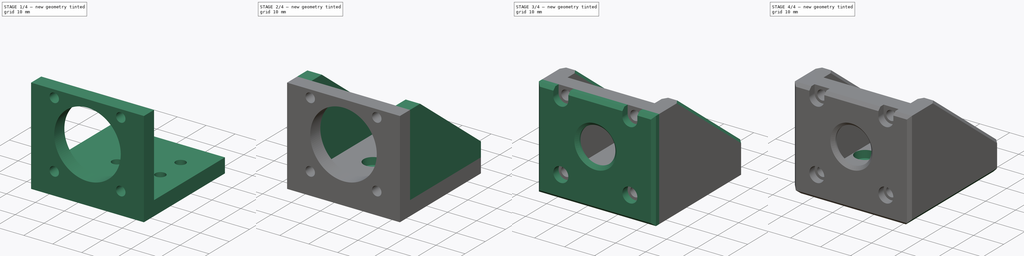
[diagram: build sequence overview — one tinted view per stage of 4, left to right]
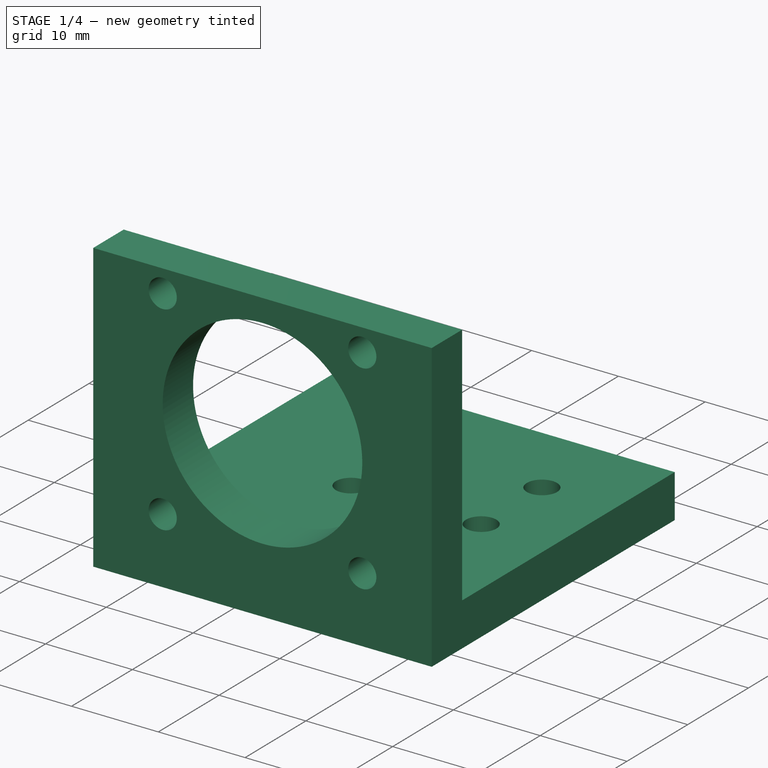
[diagram: stage 1 of 4 — iso view after this stage's code; geometry added in this stage tinted green]
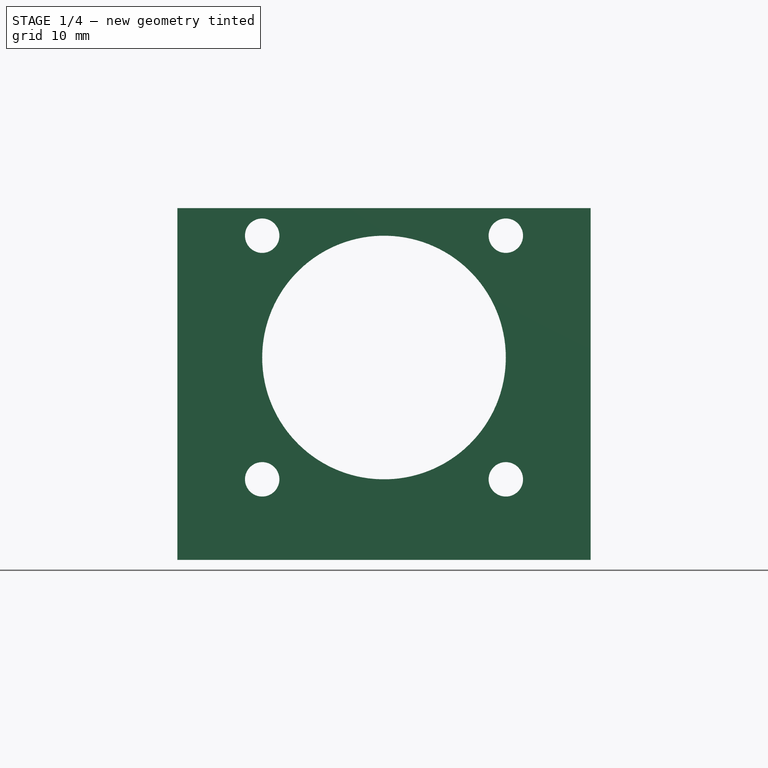
[diagram: stage 1 of 4 — front view after this stage's code; geometry added in this stage tinted green]
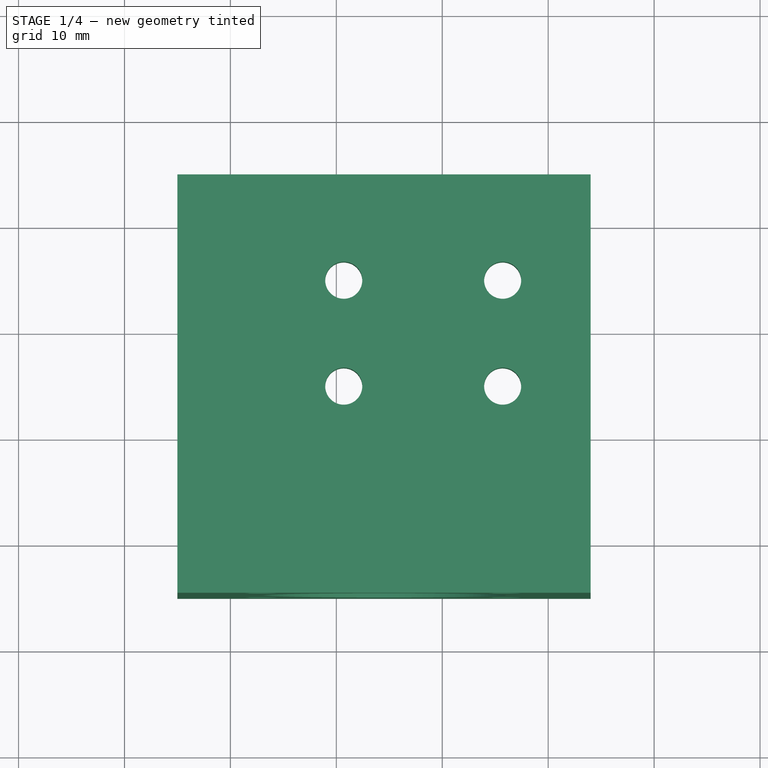
[diagram: stage 1 of 4 — top view after this stage's code; geometry added in this stage tinted green]
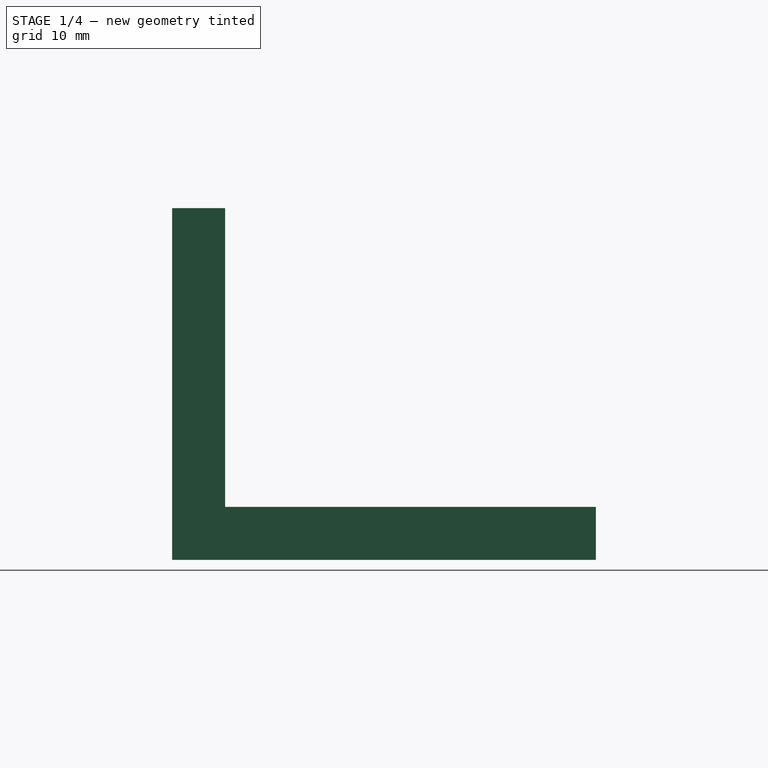
[diagram: stage 1 of 4 — right view after this stage's code; geometry added in this stage tinted green]
FCSTD DOCUMENT  (FreeCAD 0.20R29410 (Git))
Label: z-gantry
License: All rights reserved
LicenseURL: http://en.wikipedia.org/wiki/All_rights_reserved
objects: Sketcher::SketchObject×8, PartDesign::Plane×7, PartDesign::Pad×5, PartDesign::Chamfer×4, PartDesign::Pocket×3, PartDesign::Mirrored×1, PartDesign::Body×1
note: 41 computed .brp shape members not serialized (recipe doc carries the construction recipe); baked Part::Feature solids carry a one-line shape summary decoded from their .brp

FEATURE [Sketcher::SketchObject] Sketch  label="Back"
  FullyConstrained = false
  MapMode = 5
  Support = -> [XY_Plane]
  sketch-geometry (19):
    g0: LineSegment StartX=-3.79848e-06 StartY=48 StartZ=0 EndX=-3.79848e-06 EndY=0 EndZ=0
    g1: LineSegment StartX=10.7 StartY=25 StartZ=0 EndX=25.7 EndY=25 EndZ=0
    g2: LineSegment StartX=25.7 StartY=25 StartZ=0 EndX=25.7 EndY=15 EndZ=0
    g3: LineSegment StartX=25.7 StartY=15 StartZ=0 EndX=10.7 EndY=15 EndZ=0
    g4: LineSegment StartX=10.7 StartY=15 StartZ=0 EndX=10.7 EndY=25 EndZ=0
    g5: LineSegment StartX=-5 StartY=35 StartZ=0 EndX=-5 EndY=-5 EndZ=0
    g6: LineSegment StartX=8.2 StartY=22 StartZ=0 EndX=28.2 EndY=22 EndZ=0
    g7: LineSegment StartX=28.2 StartY=22 StartZ=0 EndX=28.2 EndY=18 EndZ=0
    g8: LineSegment StartX=28.2 StartY=18 StartZ=0 EndX=8.2 EndY=18 EndZ=0
    g9: LineSegment StartX=8.2 StartY=18 StartZ=0 EndX=8.2 EndY=22 EndZ=0
    g10: LineSegment StartX=18.2 StartY=22 StartZ=0 EndX=18.2 EndY=18 EndZ=0
    g11: LineSegment StartX=8.2 StartY=20 StartZ=0 EndX=28.2 EndY=20 EndZ=0
    g12: Circle CenterX=10.7 CenterY=25 CenterZ=0 NormalX=0 NormalY=0 NormalZ=1 AngleXU=0 Radius=1.75
    g13: Circle CenterX=25.7 CenterY=25 CenterZ=0 NormalX=0 NormalY=0 NormalZ=1 AngleXU=0 Radius=1.75
    g14: Circle CenterX=25.7 CenterY=15 CenterZ=0 NormalX=0 NormalY=0 NormalZ=1 AngleXU=0 Radius=1.75
    g15: Circle CenterX=10.7 CenterY=15 CenterZ=0 NormalX=0 NormalY=0 NormalZ=1 AngleXU=0 Radius=1.75
    g16: LineSegment StartX=-5 StartY=35 StartZ=0 EndX=34 EndY=35 EndZ=0
    g17: LineSegment StartX=-5 StartY=-5 StartZ=0 EndX=34 EndY=-5 EndZ=0
    g18: LineSegment StartX=34 StartY=35 StartZ=0 EndX=34 EndY=-5 EndZ=0
  constraints (51):
    c: Vertical(g0)
    c: Coincident(g1,g2)
    c: Coincident(g2,g3)
    c: Coincident(g3,g4)
    c: Coincident(g4,g1)
    c: Horizontal(g1)
    c: Horizontal(g3)
    c: Vertical(g2)
    c: Vertical(g4)
    c: Vertical(g5)
    c: DistanceX(g1,g1) = 15
    c: DistanceY(g2,g2) = 10
    c: Coincident(g6,g7)
    c: Coincident(g7,g8)
    c: Coincident(g8,g9)
    c: Coincident(g9,g6)
    c: Horizontal(g8)
    c: Vertical(g7)
    c: DistanceX(g6,g6) = 20
    c: DistanceY(g7,g7) = 30
    c: DistanceX(g5,g-1) = 5
    c: DistanceY(g5,g-1) = 5
    c: PointOnObject(g10,g6)
    c: PointOnObject(g10,g8)
    c: PointOnObject(g11,g9)
    c: PointOnObject(g11,g7)
    c: Symmetric(g6,g6,g10)
    c: Symmetric(g6,g8,g11)
    c: Symmetric(g1,g1,g10)
    c: Symmetric(g1,g2,g11)
    c: Coincident(g12,g1)
    c: Coincident(g13,g1)
    c: Coincident(g14,g2)
    c: Coincident(g15,g3)
    c: Diameter(g13) = 3.5
    c: Diameter(g12) = 3.5
    c: Diameter(g15) = 3.5
    c: Diameter(g14) = 3.5
    c: Distance(g7,g-2) = 28.2
    c: Distance(g5,g-1) = 35
    c: DistanceY(g-1,g8) = 18
    c: Coincident(g16,g5)
    c: Horizontal(g16)
    c: DistanceX(g16,g16) = 39
    c: Coincident(g17,g5)
    c: Horizontal(g17)
    c: Equal(g17,g16)
    c: Coincident(g18,g17)
    c: Coincident(g18,g16)
    c: DistanceY(g1,g16) = 23
    c: DistanceY(g17,g2) = 20
FEATURE [PartDesign::Pad] Pad  label="pad_back"
  AllowMultiFace = false
  Direction = (1,1,1)
  Length = 5
  Length2 = 100
  Profile = -> Sketch
  Refine = true
  Type = 0
FEATURE [PartDesign::Plane] DatumPlane
  Length = 70.8996
  MapMode = 5
  Placement = pos=(0,0,5) rot=(0,0,1;0rad)
  ResizeMode = 0
  Support = -> [Pad]
  Width = 71.8996
FEATURE [Sketcher::SketchObject] Sketch001  label="steppermount"
  FullyConstrained = true
  MapMode = 5
  Placement = pos=(0,0,5) rot=(0,0,1;0rad)
  Support = -> [DatumPlane]
  sketch-geometry (4):
    g0: LineSegment StartX=34 StartY=0 StartZ=0 EndX=34 EndY=-5 EndZ=0
    g1: LineSegment StartX=34 StartY=-5 StartZ=0 EndX=-5 EndY=-5 EndZ=0
    g2: LineSegment StartX=34 StartY=0 StartZ=0 EndX=-5 EndY=0 EndZ=0
    g3: LineSegment StartX=-5 StartY=-5 StartZ=0 EndX=-5 EndY=0 EndZ=0
  constraints (12):
    c: PointOnObject(g0,g-1)
    c: Vertical(g0)
    c: Coincident(g0,g1)
    c: Horizontal(g1)
    c: DistanceY(g0,g0) = 5
    c: DistanceX(g1,g1) = 39
    c: Coincident(g2,g0)
    c: Horizontal(g2)
    c: Coincident(g3,g1)
    c: Coincident(g3,g2)
    c: Vertical(g3)
    c: DistanceX(g2,g-1) = 5
FEATURE [PartDesign::Pad] Pad001
  AllowMultiFace = false
  BaseFeature = -> Pad
  Direction = (1,1,1)
  Length = 28.2
  Length2 = 100
  Profile = -> Sketch001
  Refine = true
  Type = 0
FEATURE [PartDesign::Plane] DatumPlane001
  Length = 70.8996
  MapMode = 5
  Placement = pos=(0,0,10) rot=(0,0,1;0rad)
  ResizeMode = 0
  Width = 71.8996
FEATURE [Sketcher::SketchObject] Sketch004
  ExternalGeometry = -> [Pad001]
  FullyConstrained = true
  MapMode = 5
  Placement = pos=(0,0,0) rot=(1,0,0;1.5708rad)
  Support = -> [XZ_Plane]
  sketch-geometry (15):
    g0: LineSegment StartX=0 StartY=5 StartZ=0 EndX=28.2 EndY=5 EndZ=0
    g1: LineSegment StartX=28.2 StartY=5 StartZ=0 EndX=28.2 EndY=33.2 EndZ=0
    g2: LineSegment StartX=28.2 StartY=33.2 StartZ=0 EndX=0 EndY=33.2 EndZ=0
    g3: LineSegment StartX=0 StartY=33.2 StartZ=0 EndX=0 EndY=5 EndZ=0
    g4: Circle CenterX=14.5 CenterY=19.1 CenterZ=0 NormalX=0 NormalY=0 NormalZ=1 AngleXU=0 Radius=11.5
    g5: Circle CenterX=3 CenterY=30.6 CenterZ=0 NormalX=0 NormalY=0 NormalZ=1 AngleXU=0 Radius=1.625
    g6: Circle CenterX=3 CenterY=7.6 CenterZ=0 NormalX=0 NormalY=0 NormalZ=1 AngleXU=0 Radius=1.625
    g7: Circle CenterX=26 CenterY=7.6 CenterZ=0 NormalX=0 NormalY=0 NormalZ=1 AngleXU=0 Radius=1.625
    g8: Circle CenterX=26 CenterY=30.6 CenterZ=0 NormalX=0 NormalY=0 NormalZ=1 AngleXU=0 Radius=1.625
    g9: LineSegment StartX=3 StartY=30.6 StartZ=0 EndX=3 EndY=7.6 EndZ=0
    g10: LineSegment StartX=3 StartY=7.6 StartZ=0 EndX=26 EndY=7.6 EndZ=0
    g11: LineSegment StartX=26 StartY=7.6 StartZ=0 EndX=26 EndY=30.6 EndZ=0
    g12: LineSegment StartX=26 StartY=30.6 StartZ=0 EndX=3 EndY=30.6 EndZ=0
    g13: LineSegment StartX=14.5 StartY=33.2 StartZ=0 EndX=14.5 EndY=5 EndZ=0
    g14: LineSegment StartX=0 StartY=19.1 StartZ=0 EndX=28.2 EndY=19.1 EndZ=0
  constraints (39):
    c: Coincident(g0,g1)
    c: Coincident(g1,g2)
    c: Coincident(g2,g3)
    c: Coincident(g3,g0)
    c: Horizontal(g0)
    c: Horizontal(g2)
    c: Vertical(g1)
    c: Vertical(g3)
    c: PointOnObject(g0,g-2)
    c: DistanceX(g2,g2) = 28.2
    c: DistanceY(g1,g1) = 28.2
    c: DistanceY(g-1,g0) = 5
    c: Coincident(g9,g5)
    c: Coincident(g9,g6)
    c: Coincident(g9,g10)
    c: Coincident(g10,g7)
    c: Coincident(g10,g11)
    c: Coincident(g11,g8)
    c: Vertical(g11)
    c: Coincident(g11,g12)
    c: Coincident(g12,g9)
    c: Horizontal(g10)
    c: DistanceX(g12,g12) = 23
    c: DistanceY(g11,g11) = 23
    c: Diameter(g4) = 23
    c: Diameter(g8) = 3.25
    c: Diameter(g5) = 3.25
    c: Diameter(g6) = 3.25
    c: Diameter(g7) = 3.25
    c: PointOnObject(g13,g0)
    c: PointOnObject(g14,g3)
    c: PointOnObject(g14,g1)
    c: Symmetric(g2,g0,g14)
    c: Symmetric(g5,g8,g13)
    c: Symmetric(g5,g6,g14)
    c: PointOnObject(g4,g14)
    c: PointOnObject(g4,g13)
    c: Vertical(g13)
    c: Symmetric(g-3,g-4,g13)
FEATURE [PartDesign::Pocket] Pocket001  label="NEMA 11 Mounting Bolt Hole Pattern"
  AllowMultiFace = false
  BaseFeature = -> Pad001
  Direction = (1,1,1)
  Length = 6
  Length2 = 100
  Profile = -> Sketch004
  Refine = true
  Reversed = true
  Type = 1
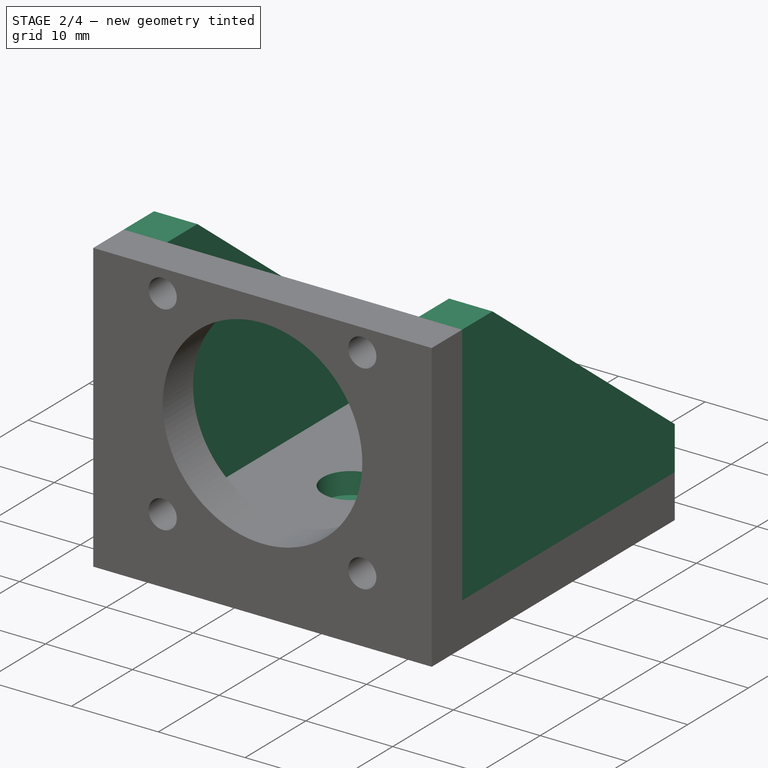
[diagram: stage 2 of 4 — iso view after this stage's code; geometry added in this stage tinted green]
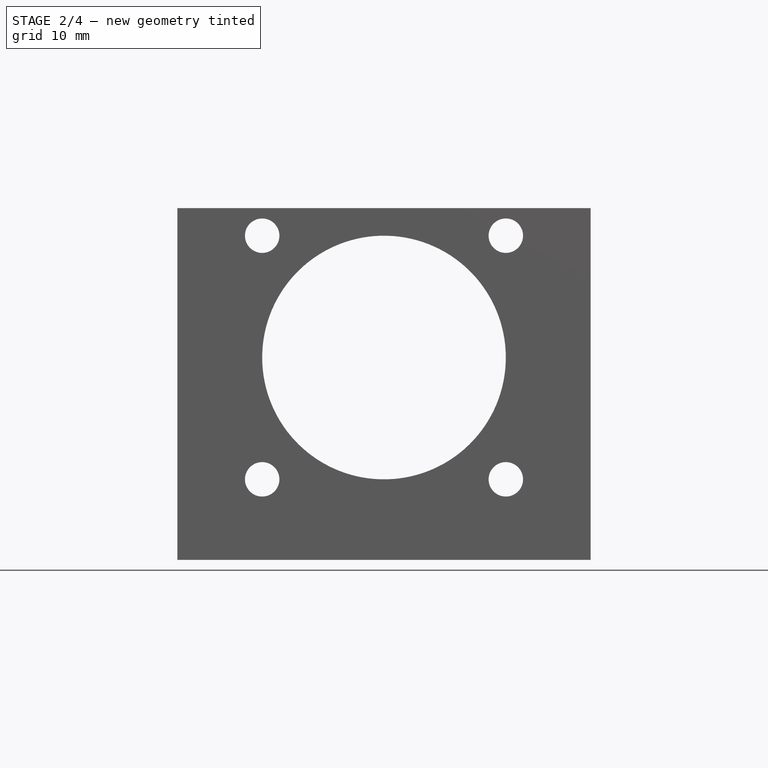
[diagram: stage 2 of 4 — front view after this stage's code; geometry added in this stage tinted green]
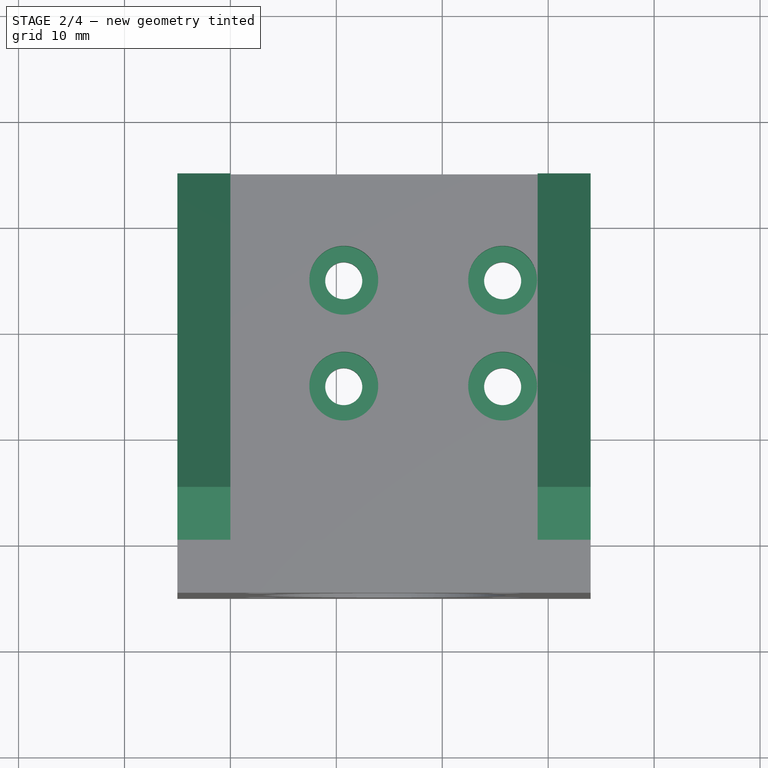
[diagram: stage 2 of 4 — top view after this stage's code; geometry added in this stage tinted green]
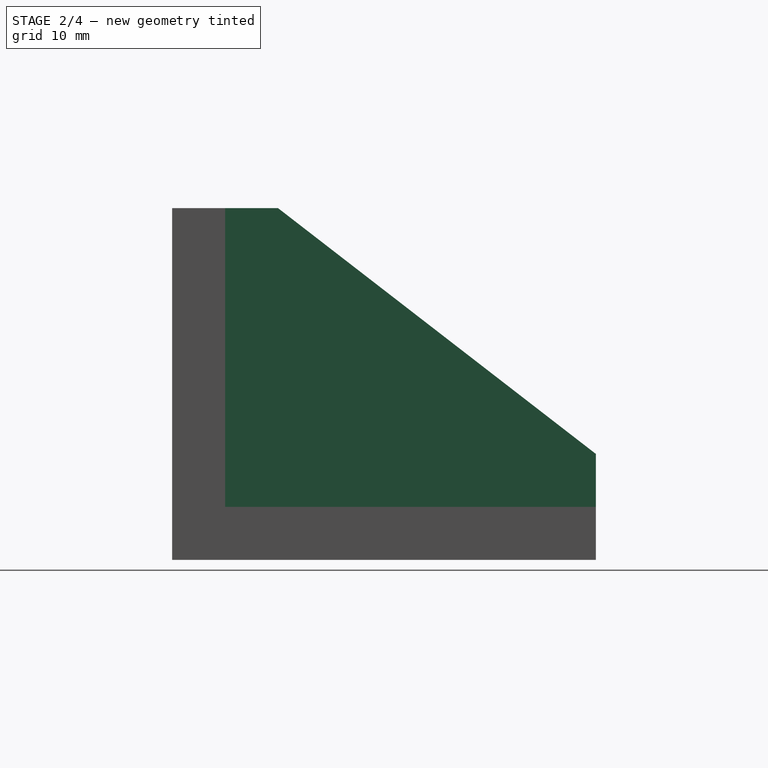
[diagram: stage 2 of 4 — right view after this stage's code; geometry added in this stage tinted green]
FEATURE [Sketcher::SketchObject] Sketch005  label="Counterbore"
  FullyConstrained = true
  MapMode = 5
  Placement = pos=(0,0,5) rot=(0,0,1;0rad)
  Support = -> [DatumPlane]
  sketch-geometry (8):
    g0: Circle CenterX=10.7 CenterY=25 CenterZ=0 NormalX=0 NormalY=0 NormalZ=1 AngleXU=0 Radius=3.25
    g1: Circle CenterX=25.7 CenterY=25 CenterZ=0 NormalX=0 NormalY=0 NormalZ=1 AngleXU=0 Radius=3.25
    g2: Circle CenterX=10.7 CenterY=15 CenterZ=0 NormalX=0 NormalY=0 NormalZ=1 AngleXU=0 Radius=3.25
    g3: Circle CenterX=25.7 CenterY=15 CenterZ=0 NormalX=0 NormalY=0 NormalZ=1 AngleXU=0 Radius=3.25
    g4: LineSegment StartX=10.7 StartY=25 StartZ=0 EndX=25.7 EndY=25 EndZ=0
    g5: LineSegment StartX=25.7 StartY=25 StartZ=0 EndX=25.7 EndY=15 EndZ=0
    g6: LineSegment StartX=25.7 StartY=15 StartZ=0 EndX=10.7 EndY=15 EndZ=0
    g7: LineSegment StartX=10.7 StartY=15 StartZ=0 EndX=10.7 EndY=25 EndZ=0
  constraints (20):
    c: Equal(g0,g1)
    c: DistanceX(g0,g1) = 15
    c: Horizontal(g0,g1)
    c: DistanceX(g-1,g0) = 10.7
    c: DistanceY(g-1,g0) = 25
    c: Diameter(g1) = 6.5
    c: Diameter(g3) = 6.5
    c: Diameter(g2) = 6.5
    c: Coincident(g4,g5)
    c: Coincident(g5,g6)
    c: Coincident(g6,g7)
    c: Coincident(g7,g4)
    c: Horizontal(g6)
    c: Vertical(g5)
    c: Vertical(g7)
    c: Coincident(g4,g0)
    c: Coincident(g4,g1)
    c: Coincident(g6,g2)
    c: Coincident(g5,g3)
    c: DistanceY(g7,g7) = 10
FEATURE [PartDesign::Pocket] Pocket002  label="pkt_counterbore"
  AllowMultiFace = false
  BaseFeature = -> Pocket001
  Direction = (1,1,1)
  Length = 2.5
  Length2 = 2
  Profile = -> Sketch005
  Refine = true
  Type = 0
FEATURE [PartDesign::Plane] DatumPlane002
  Length = 71.8186
  MapMode = 5
  Placement = pos=(-5,0,0) rot=(0.57735,-0.57735,-0.57735;2.0944rad)
  ResizeMode = 0
  Support = -> [Pocket002]
  Width = 70.0186
FEATURE [Sketcher::SketchObject] Sketch006  label="SideWall"
  FullyConstrained = true
  MapMode = 5
  Placement = pos=(-5,0,0) rot=(0.57735,-0.57735,-0.57735;2.0944rad)
  Support = -> [DatumPlane002]
  sketch-geometry (5):
    g0: LineSegment StartX=5 StartY=33.2 StartZ=0 EndX=-5 EndY=33.2 EndZ=0
    g1: LineSegment StartX=-5 StartY=33.2 StartZ=0 EndX=-35 EndY=10 EndZ=0
    g2: LineSegment StartX=-35 StartY=10 StartZ=0 EndX=-35 EndY=0 EndZ=0
    g3: LineSegment StartX=-35 StartY=0 StartZ=0 EndX=5 EndY=0 EndZ=0
    g4: LineSegment StartX=5 StartY=33.2 StartZ=0 EndX=5 EndY=0 EndZ=0
  constraints (15):
    c: PointOnObject(g3,g-1)
    c: Horizontal(g0)
    c: Coincident(g1,g0)
    c: Coincident(g2,g1)
    c: PointOnObject(g2,g-1)
    c: Vertical(g2)
    c: Coincident(g3,g2)
    c: DistanceX(g3,g3) = 40
    c: DistanceY(g2,g2) = 10
    c: DistanceY(g-1,g0) = 33.2
    c: DistanceX(g-1,g3) = 5
    c: DistanceX(g0,g0) = 10
    c: Coincident(g4,g0)
    c: Coincident(g4,g3)
    c: Vertical(g4)
FEATURE [PartDesign::Pad] Pad002  label="pad_sidewall"
  BaseFeature = -> Pocket002
  Direction = (1,1,1)
  Length = 5
  Length2 = 100
  Profile = -> Sketch006
  Reversed = true
  Type = 0
FEATURE [PartDesign::Plane] DatumPlane004
  Length = 60
  MapMode = 5
  Placement = pos=(34,0,0) rot=(0.57735,0.57735,0.57735;2.0944rad)
  ResizeMode = 0
  Width = 60
FEATURE [Sketcher::SketchObject] Sketch007  label="Sidewall2"
  FullyConstrained = true
  MapMode = 5
  Placement = pos=(34,0,0) rot=(0.57735,0.57735,0.57735;2.0944rad)
  Support = -> [DatumPlane004]
  sketch-geometry (5):
    g0: LineSegment StartX=-5 StartY=0 StartZ=0 EndX=35 EndY=0 EndZ=0
    g1: LineSegment StartX=35 StartY=0 StartZ=0 EndX=35 EndY=10 EndZ=0
    g2: LineSegment StartX=35 StartY=10 StartZ=0 EndX=5 EndY=33.2 EndZ=0
    g3: LineSegment StartX=5 StartY=33.2 StartZ=0 EndX=-5 EndY=33.2 EndZ=0
    g4: LineSegment StartX=-5 StartY=33.2 StartZ=0 EndX=-5 EndY=0 EndZ=0
  constraints (15):
    c: PointOnObject(g0,g-1)
    c: PointOnObject(g0,g-1)
    c: Coincident(g0,g1)
    c: Vertical(g1)
    c: Coincident(g1,g2)
    c: Coincident(g2,g3)
    c: Horizontal(g3)
    c: Coincident(g3,g4)
    c: Coincident(g4,g0)
    c: Vertical(g4)
    c: DistanceX(g0,g-1) = 5
    c: DistanceX(g-1,g0) = 35
    c: DistanceY(g4,g4) = 33.2
    c: DistanceY(g1,g1) = 10
    c: DistanceX(g3,g3) = 10
FEATURE [PartDesign::Pad] Pad003  label="pad_sidewall2"
  BaseFeature = -> Pad002
  Direction = (1,1,1)
  Length = 5
  Length2 = 100
  Profile = -> Sketch007
  Reversed = true
  Type = 0
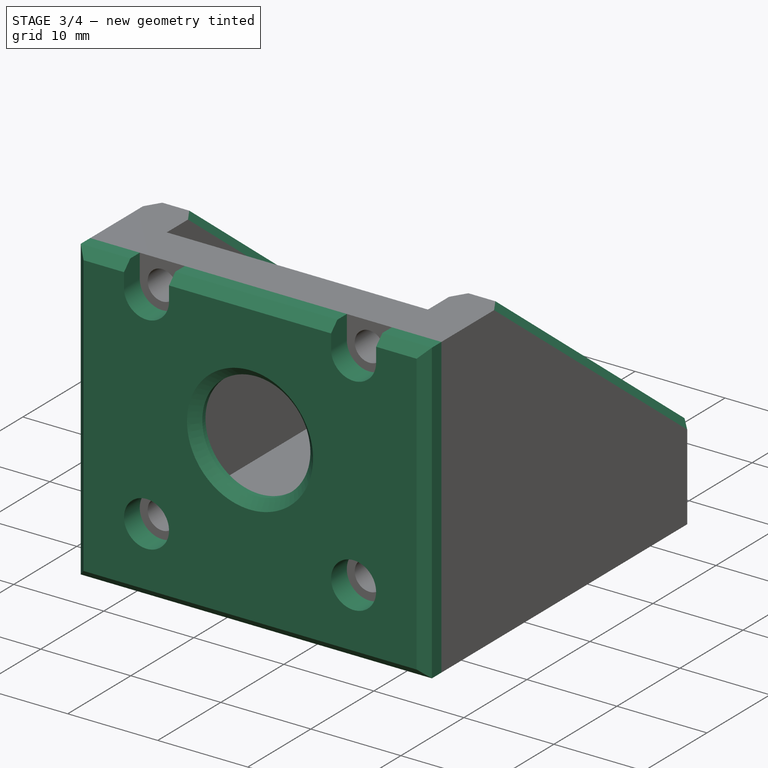
[diagram: stage 3 of 4 — iso view after this stage's code; geometry added in this stage tinted green]
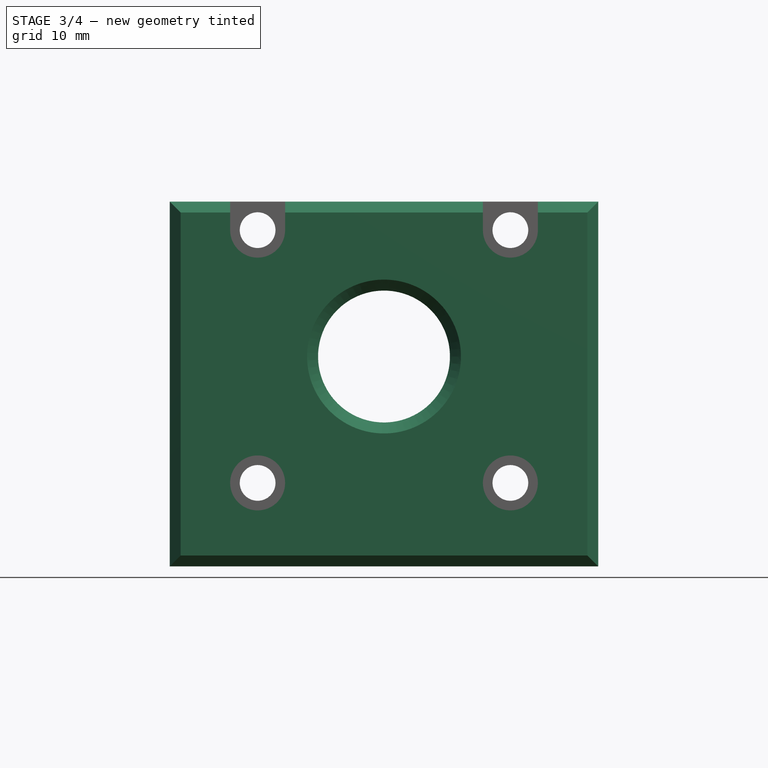
[diagram: stage 3 of 4 — front view after this stage's code; geometry added in this stage tinted green]
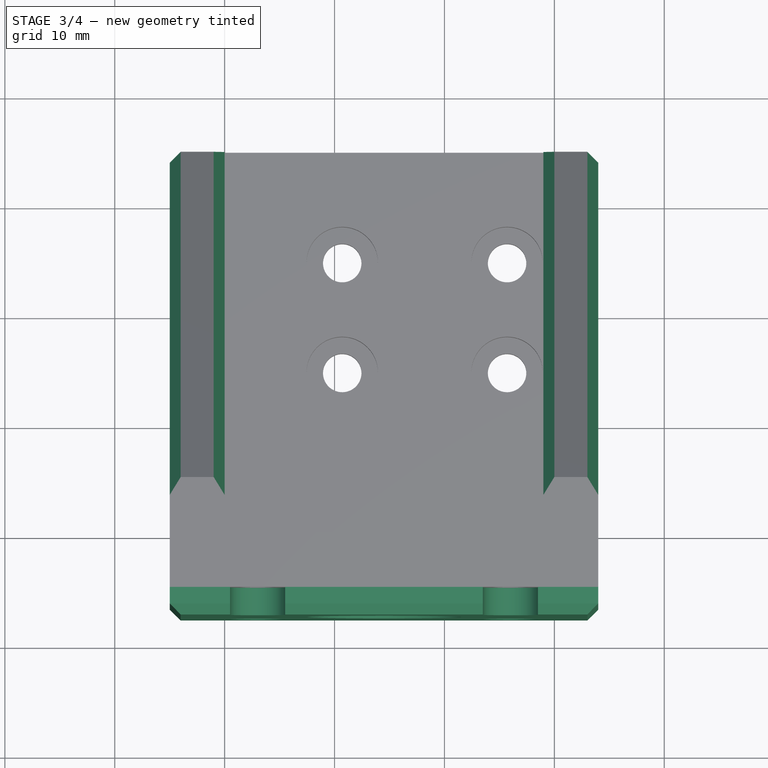
[diagram: stage 3 of 4 — top view after this stage's code; geometry added in this stage tinted green]
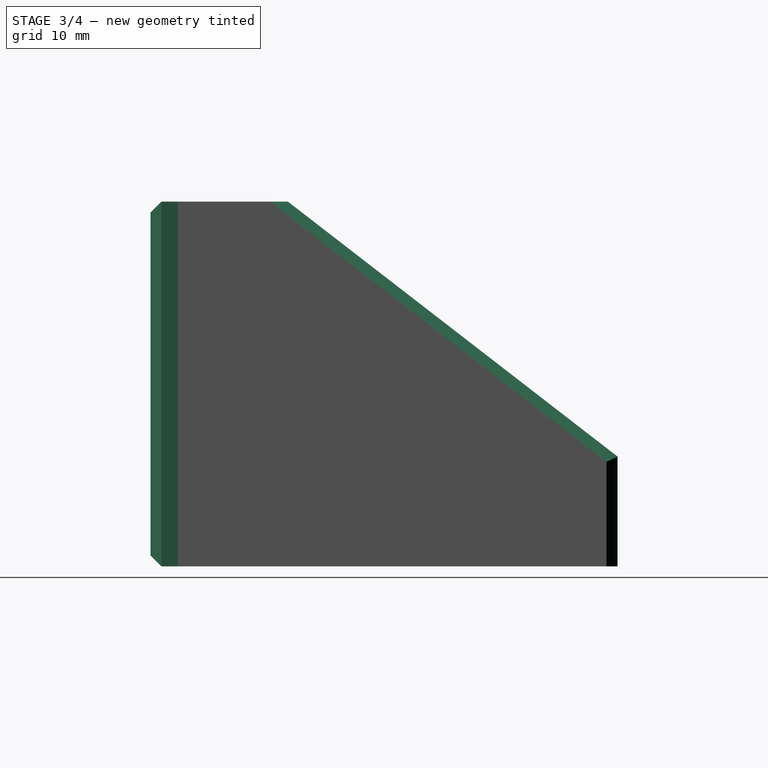
[diagram: stage 3 of 4 — right view after this stage's code; geometry added in this stage tinted green]
FEATURE [PartDesign::Chamfer] Chamfer
  Angle = 45
  Base = -> Pad003 [Edge74]
  BaseFeature = -> Pad003
  ChamferType = 0
  FlipDirection = false
  Size = 2
  Size2 = 1
  SupportTransform = false
  UseAllEdges = false
FEATURE [PartDesign::Plane] DatumPlane005
  Length = 70.7197
  MapMode = 5
  Placement = pos=(0,-5,0) rot=(1,0,0;1.5708rad)
  ResizeMode = 0
  Support = -> [Chamfer]
  Width = 69.9197
FEATURE [Sketcher::SketchObject] Sketch008
  ExternalGeometry = -> [Pad002]
  FullyConstrained = true
  MapMode = 5
  Placement = pos=(0,-5,0) rot=(1,0,0;1.5708rad)
  Support = -> [DatumPlane005]
  sketch-geometry (21):
    g0: LineSegment StartX=-5 StartY=0 StartZ=0 EndX=34 EndY=0 EndZ=0
    g1: LineSegment StartX=34 StartY=0 StartZ=0 EndX=34 EndY=33.2 EndZ=0
    g2: LineSegment StartX=-5 StartY=33.2 StartZ=0 EndX=-5 EndY=0 EndZ=0
    g3: Circle CenterX=14.5 CenterY=19.1 CenterZ=0 NormalX=0 NormalY=0 NormalZ=1 AngleXU=0 Radius=6
    g4: Circle CenterX=26 CenterY=7.6 CenterZ=0 NormalX=0 NormalY=0 NormalZ=1 AngleXU=0 Radius=2.5
    g5: Circle CenterX=3 CenterY=7.6 CenterZ=0 NormalX=0 NormalY=0 NormalZ=1 AngleXU=0 Radius=2.5
    g6: ArcOfCircle CenterX=3 CenterY=30.6 CenterZ=0 NormalX=0 NormalY=0 NormalZ=1 AngleXU=0 Radius=2.5 StartAngle=3.1416 EndAngle=6.28318
    g7: ArcOfCircle CenterX=26 CenterY=30.6 CenterZ=0 NormalX=0 NormalY=0 NormalZ=1 AngleXU=0 Radius=2.5 StartAngle=3.1416 EndAngle=6.28318
    g8: LineSegment StartX=0.5 StartY=30.6 StartZ=0 EndX=0.5 EndY=33.2 EndZ=0
    g9: LineSegment StartX=5.5 StartY=30.6 StartZ=0 EndX=5.5 EndY=33.2 EndZ=0
    g10: LineSegment StartX=23.5 StartY=30.6 StartZ=0 EndX=23.5 EndY=33.2 EndZ=0
    g11: LineSegment StartX=28.5 StartY=30.6 StartZ=0 EndX=28.5 EndY=33.2 EndZ=0
    g12: LineSegment StartX=-5 StartY=33.2 StartZ=0 EndX=0.5 EndY=33.2 EndZ=0
    g13: LineSegment StartX=5.5 StartY=33.2 StartZ=0 EndX=23.5 EndY=33.2 EndZ=0
    g14: LineSegment StartX=28.5 StartY=33.2 StartZ=0 EndX=34 EndY=33.2 EndZ=0
    g15: LineSegment StartX=3 StartY=30.6 StartZ=0 EndX=26 EndY=30.6 EndZ=0
    g16: LineSegment StartX=26 StartY=30.6 StartZ=0 EndX=26 EndY=7.6 EndZ=0
    g17: LineSegment StartX=26 StartY=7.6 StartZ=0 EndX=3 EndY=7.6 EndZ=0
    g18: LineSegment StartX=3 StartY=7.6 StartZ=0 EndX=3 EndY=30.6 EndZ=0
    g19: LineSegment StartX=14.5 StartY=19.1 StartZ=0 EndX=14.5 EndY=30.6 EndZ=0
    g20: LineSegment StartX=3 StartY=19.1 StartZ=0 EndX=14.5 EndY=19.1 EndZ=0
  constraints (59):
    c: Coincident(g0,g1)
    c: Coincident(g2,g0)
    c: Horizontal(g0)
    c: Vertical(g1)
    c: Vertical(g2)
    c: PointOnObject(g0,g-1)
    c: DistanceX(g0,g-1) = 5
    c: DistanceX(g-1,g0) = 34
    c: DistanceY(g0,g2) = 33.2
    c: Diameter(g3) = 12
    c: Coincident(g8,g6)
    c: Vertical(g8)
    c: Coincident(g9,g6)
    c: Coincident(g10,g7)
    c: Coincident(g11,g7)
    c: Coincident(g12,g2)
    c: Coincident(g12,g8)
    c: Coincident(g13,g9)
    c: Coincident(g13,g10)
    c: Horizontal(g13)
    c: Coincident(g14,g11)
    c: Coincident(g14,g1)
    c: Horizontal(g12)
    c: Horizontal(g14)
    c: Vertical(g9)
    c: Vertical(g11)
    c: Vertical(g10)
    c: PointOnObject(g9,g12)
    c: PointOnObject(g11,g12)
    c: Diameter(g7) = 5
    c: Diameter(g6) = 5
    c: Coincident(g15,g16)
    c: Coincident(g16,g17)
    c: Coincident(g17,g18)
    c: Coincident(g18,g15)
    c: Horizontal(g15)
    c: Horizontal(g17)
    c: Vertical(g16)
    c: Vertical(g18)
    c: Coincident(g15,g6)
    c: Coincident(g15,g7)
    c: Tangent(g7,g11)
    c: Tangent(g7,g10)
    c: Tangent(g6,g9)
    c: Tangent(g6,g8)
    c: DistanceX(g-1,g17) = 2.6
    c: DistanceX(g15,g15) = 23
    c: DistanceY(g18,g18) = 23
    c: Coincident(g5,g17)
    c: Coincident(g4,g16)
    c: Diameter(g4) = 5
    c: Diameter(g5) = 5
    c: Coincident(g19,g3)
    c: PointOnObject(g19,g15)
    c: PointOnObject(g20,g18)
    c: Coincident(g20,g3)
    c: Symmetric(g6,g7,g19)
    c: Symmetric(g6,g5,g20)
    c: Coincident(g5,g-3)
FEATURE [PartDesign::Pad] Pad004
  BaseFeature = -> Chamfer
  Direction = (1,1,1)
  Length = 2.5
  Length2 = 100
  Profile = -> Sketch008
  Type = 0
FEATURE [PartDesign::Chamfer] Chamfer001
  Angle = 45
  Base = -> Pad004 [Edge120,Edge88,Edge114,Edge112,Edge115,Edge97,Edge58,Edge77,Edge71,Edge65,Edge57,Edge20,Edge30,Edge83]
  BaseFeature = -> Pad004
  ChamferType = 0
  FlipDirection = false
  Size = 1
  Size2 = 1
  SupportTransform = false
  UseAllEdges = false
FEATURE [PartDesign::Chamfer] Chamfer002
  Angle = 45
  Base = -> Chamfer001 [Edge37,Edge6]
  BaseFeature = -> Chamfer001
  ChamferType = 0
  FlipDirection = false
  Size = 1
  Size2 = 1
  SupportTransform = false
  UseAllEdges = false
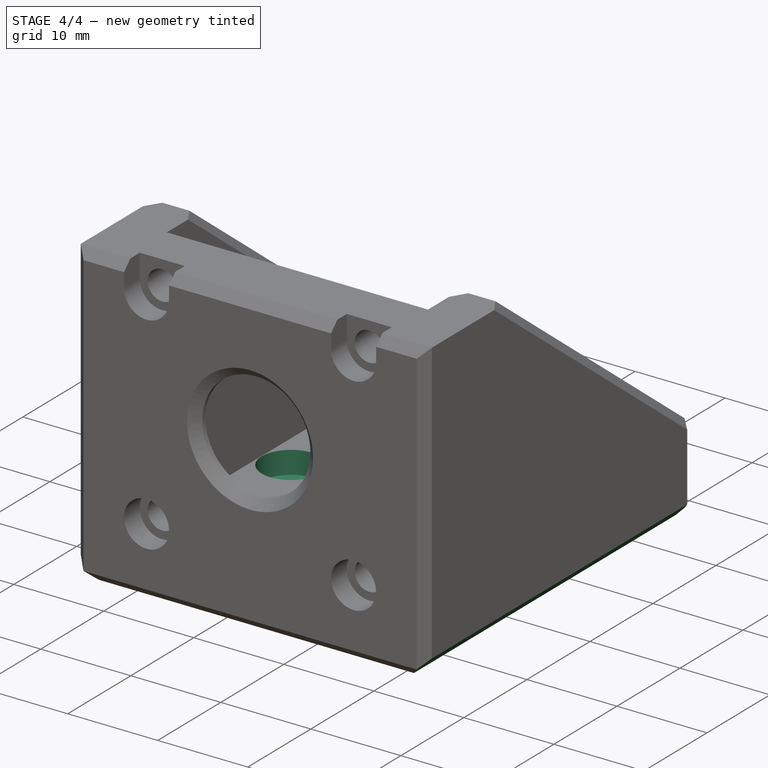
[diagram: stage 4 of 4 — iso view after this stage's code; geometry added in this stage tinted green]
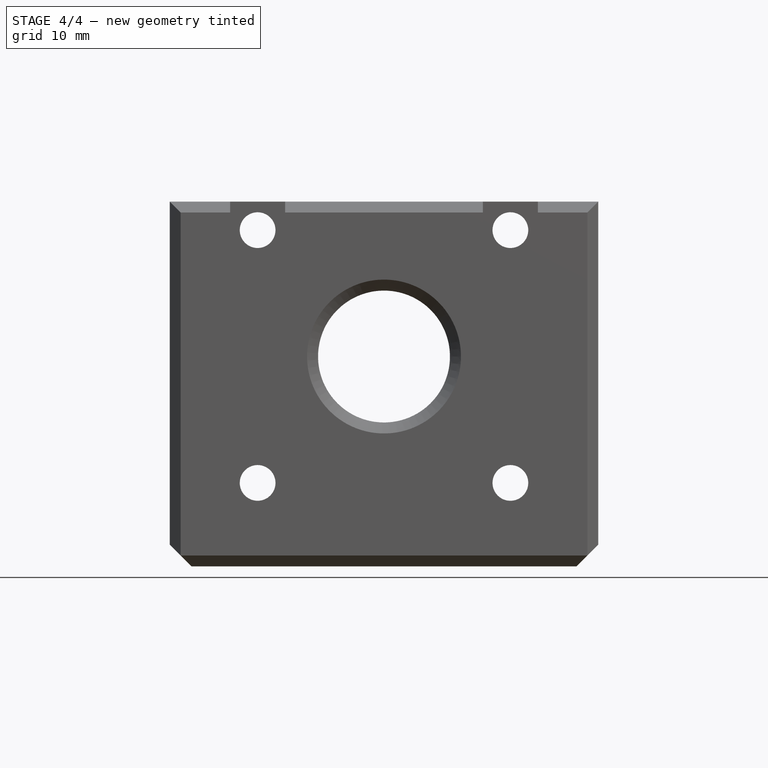
[diagram: stage 4 of 4 — front view after this stage's code; geometry added in this stage tinted green]
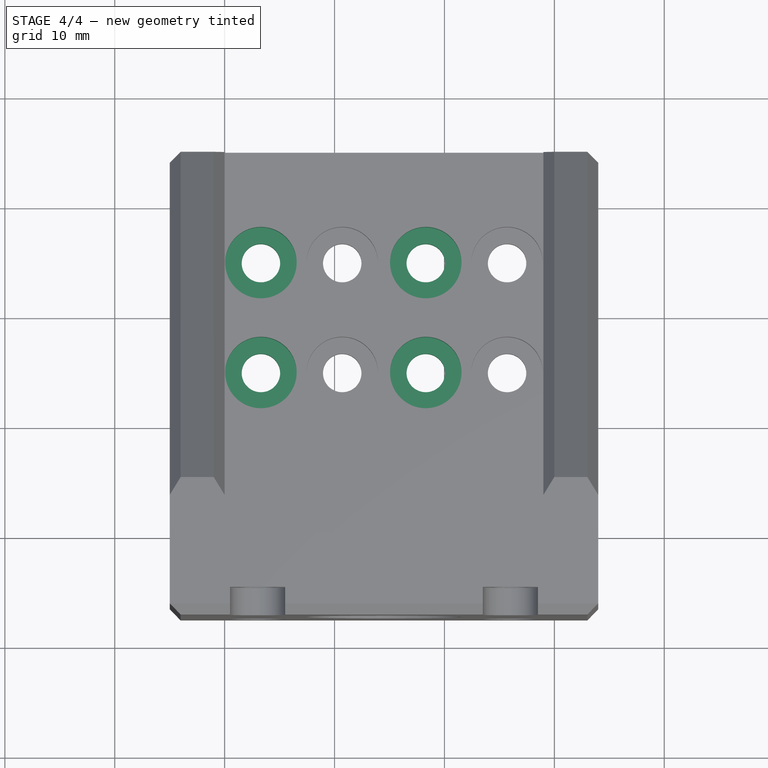
[diagram: stage 4 of 4 — top view after this stage's code; geometry added in this stage tinted green]
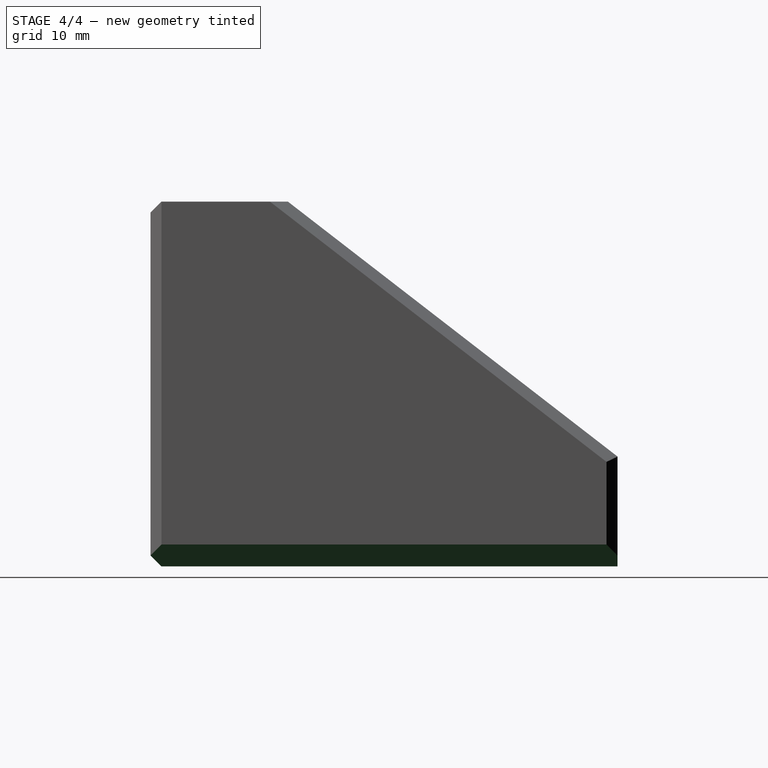
[diagram: stage 4 of 4 — right view after this stage's code; geometry added in this stage tinted green]
FEATURE [PartDesign::Plane] DatumPlane006  label="PrintPlane"
  Length = 70.8996
  MapMode = 5
  Placement = pos=(0,0,0) rot=(1,0,0;3.14159rad)
  ResizeMode = 0
  Support = -> [Chamfer002]
  Width = 71.8996
FEATURE [PartDesign::Chamfer] Chamfer003
  Angle = 45
  Base = -> Chamfer002 [Edge92,Edge22]
  BaseFeature = -> Chamfer002
  ChamferType = 0
  FlipDirection = false
  Size = 2
  Size2 = 1
  SupportTransform = false
  UseAllEdges = false
FEATURE [PartDesign::Plane] DatumPlane008
  AttachmentOffset = pos=(0,0,14.5) rot=(0,0,1;0rad)
  Length = 71.8186
  MapMode = 5
  Placement = pos=(14.5,-3.2e-15,3.2e-15) rot=(0.57735,0.57735,0.57735;2.0944rad)
  ResizeMode = 0
  Support = -> [YZ_Plane]
  Width = 70.0186
FEATURE [PartDesign::Mirrored] Mirrored
  BaseFeature = -> Chamfer003
  MirrorPlane = -> DatumPlane008
  Originals = -> [Pocket002]
FEATURE [Sketcher::SketchObject] Sketch009  label="Back001"
  ExternalGeometry = -> [Mirrored]
  FullyConstrained = true
  MapMode = 5
  Support = -> [XY_Plane]
  sketch-geometry (14):
    g0: LineSegment StartX=3.3 StartY=25 StartZ=0 EndX=18.3 EndY=25 EndZ=0
    g1: LineSegment StartX=18.3 StartY=25 StartZ=0 EndX=18.3 EndY=15 EndZ=0
    g2: LineSegment StartX=18.3 StartY=15 StartZ=0 EndX=3.3 EndY=15 EndZ=0
    g3: LineSegment StartX=3.3 StartY=15 StartZ=0 EndX=3.3 EndY=25 EndZ=0
    g4: LineSegment StartX=0.8 StartY=35 StartZ=0 EndX=20.8 EndY=35 EndZ=0
    g5: LineSegment StartX=20.8 StartY=35 StartZ=0 EndX=20.8 EndY=5 EndZ=0
    g6: LineSegment StartX=20.8 StartY=5 StartZ=0 EndX=0.8 EndY=5 EndZ=0
    g7: LineSegment StartX=0.8 StartY=5 StartZ=0 EndX=0.8 EndY=35 EndZ=0
    g8: LineSegment StartX=10.8 StartY=35 StartZ=0 EndX=10.8 EndY=5 EndZ=0
    g9: LineSegment StartX=0.8 StartY=20 StartZ=0 EndX=20.8 EndY=20 EndZ=0
    g10: Circle CenterX=3.3 CenterY=25 CenterZ=0 NormalX=0 NormalY=0 NormalZ=1 AngleXU=0 Radius=1.75
    g11: Circle CenterX=18.3 CenterY=25 CenterZ=0 NormalX=0 NormalY=0 NormalZ=1 AngleXU=0 Radius=1.75
    g12: Circle CenterX=18.3 CenterY=15 CenterZ=0 NormalX=0 NormalY=0 NormalZ=1 AngleXU=0 Radius=1.75
    g13: Circle CenterX=3.3 CenterY=15 CenterZ=0 NormalX=0 NormalY=0 NormalZ=1 AngleXU=0 Radius=1.75
  constraints (36):
    c: Coincident(g0,g1)
    c: Coincident(g1,g2)
    c: Coincident(g2,g3)
    c: Coincident(g3,g0)
    c: Horizontal(g0)
    c: Horizontal(g2)
    c: Vertical(g1)
    c: Vertical(g3)
    c: DistanceX(g0,g0) = 15
    c: DistanceY(g1,g1) = 10
    c: Coincident(g4,g5)
    c: Coincident(g5,g6)
    c: Coincident(g6,g7)
    c: Coincident(g7,g4)
    c: Horizontal(g6)
    c: Vertical(g5)
    c: DistanceX(g4,g4) = 20
    c: DistanceY(g5,g5) = 30
    c: PointOnObject(g8,g4)
    c: PointOnObject(g8,g6)
    c: PointOnObject(g9,g7)
    c: PointOnObject(g9,g5)
    c: Symmetric(g4,g4,g8)
    c: Symmetric(g4,g6,g9)
    c: Symmetric(g0,g0,g8)
    c: Symmetric(g0,g1,g9)
    c: Coincident(g10,g0)
    c: Coincident(g11,g0)
    c: Coincident(g12,g1)
    c: Coincident(g13,g2)
    c: Diameter(g11) = 3.5
    c: Diameter(g10) = 3.5
    c: Diameter(g13) = 3.5
    c: Diameter(g12) = 3.5
    c: DistanceY(g-1,g6) = 5
    c: Coincident(g0,g-4)
FEATURE [PartDesign::Pocket] Pocket
  BaseFeature = -> Mirrored
  Direction = (1,1,1)
  Length = 8
  Length2 = 100
  Profile = -> Sketch009
  Reversed = true
  Type = 0
FEATURE [PartDesign::Body] Body
  Group = -> [Sketch,Pad,DatumPlane,Sketch001,Pad001,DatumPlane001,Sketch004,Pocket001,Sketch005,Pocket002,DatumPlane002,Pad002,Sketch006,DatumPlane004,Sketch007,Pad003,Chamfer,DatumPlane005,Sketch008,Pad004,Chamfer001,Chamfer002,DatumPlane006,Chamfer003,DatumPlane008,Mirrored,Sketch009,Pocket]
  Origin = -> Origin
  Tip = -> Pocket
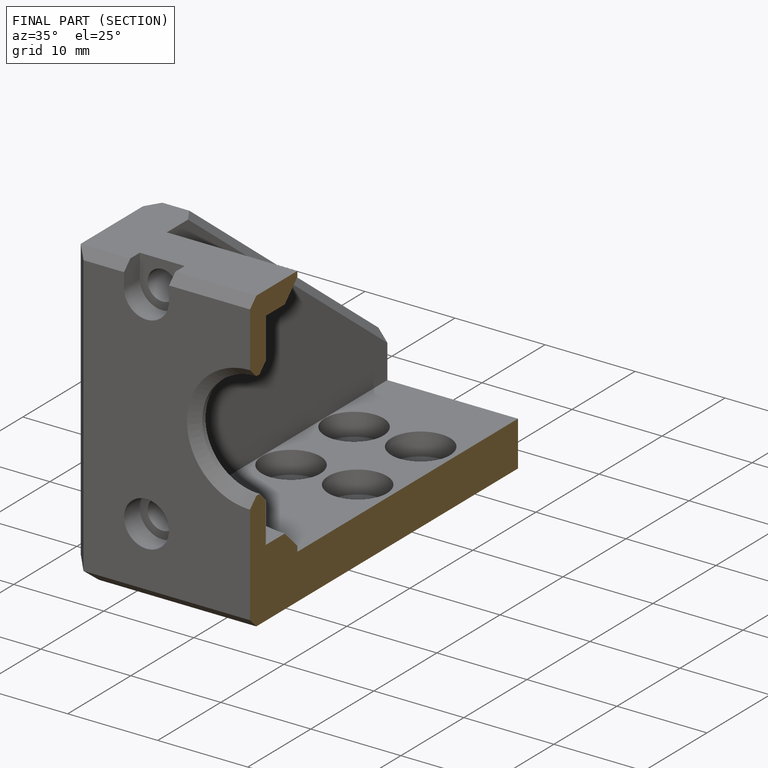
[diagram: finished part — half-section view (interior)]
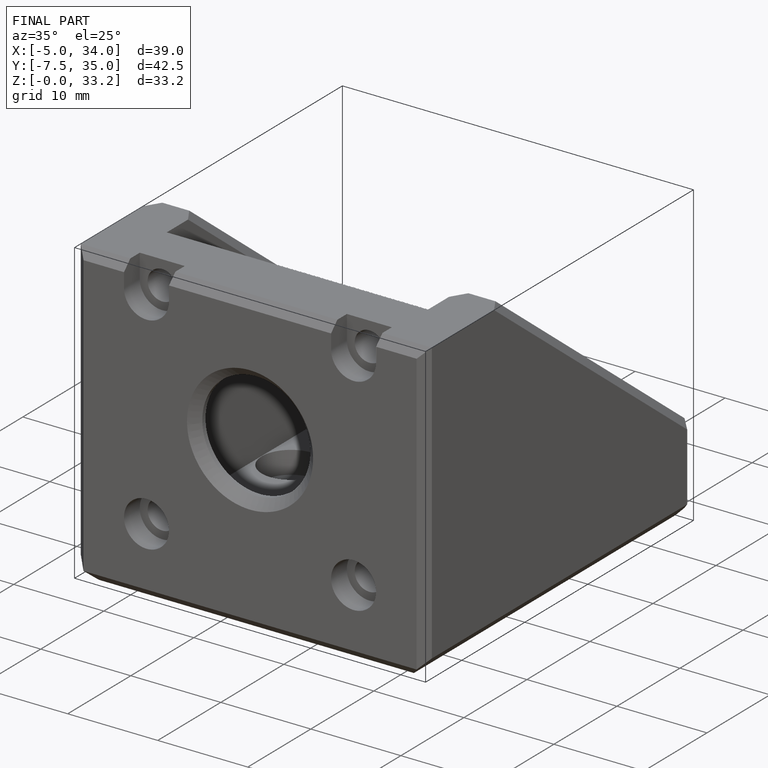
[diagram: finished part — iso view with bounding-box wireframe]
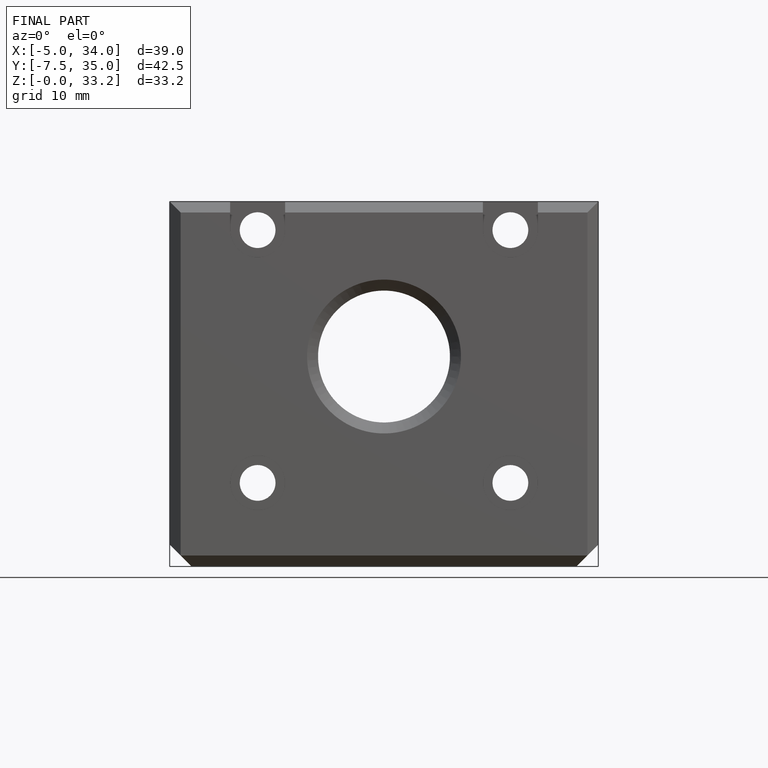
[diagram: finished part — front view with bounding-box wireframe]
